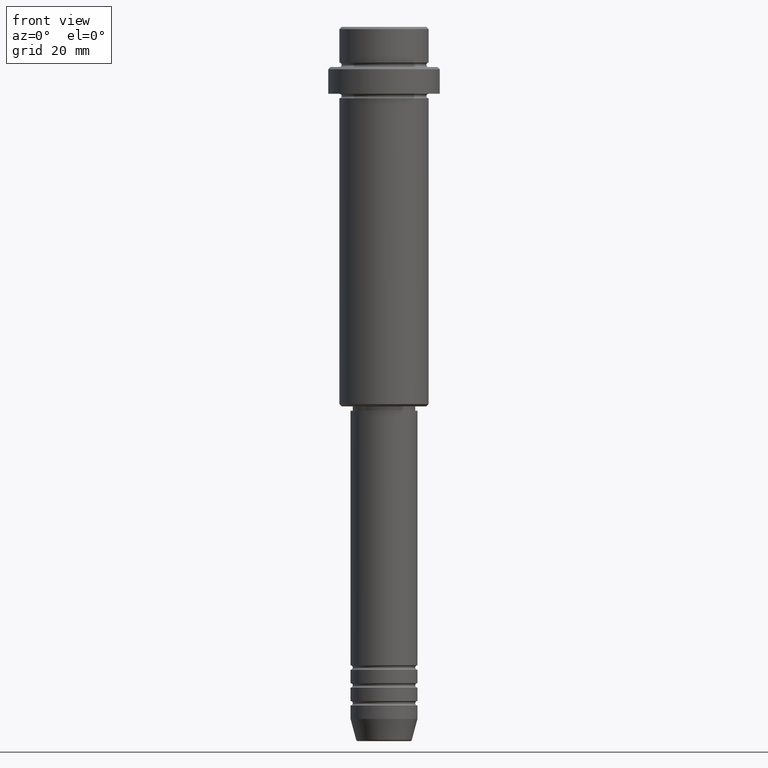
[diagram: clean part render]
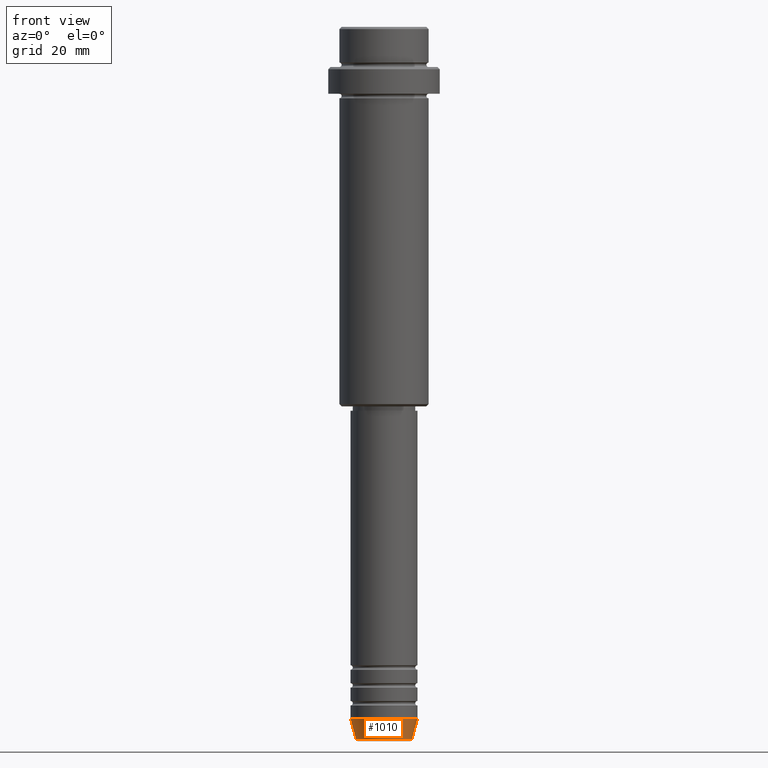
[diagram: same view with one face highlighted and labeled with its STEP entity id]
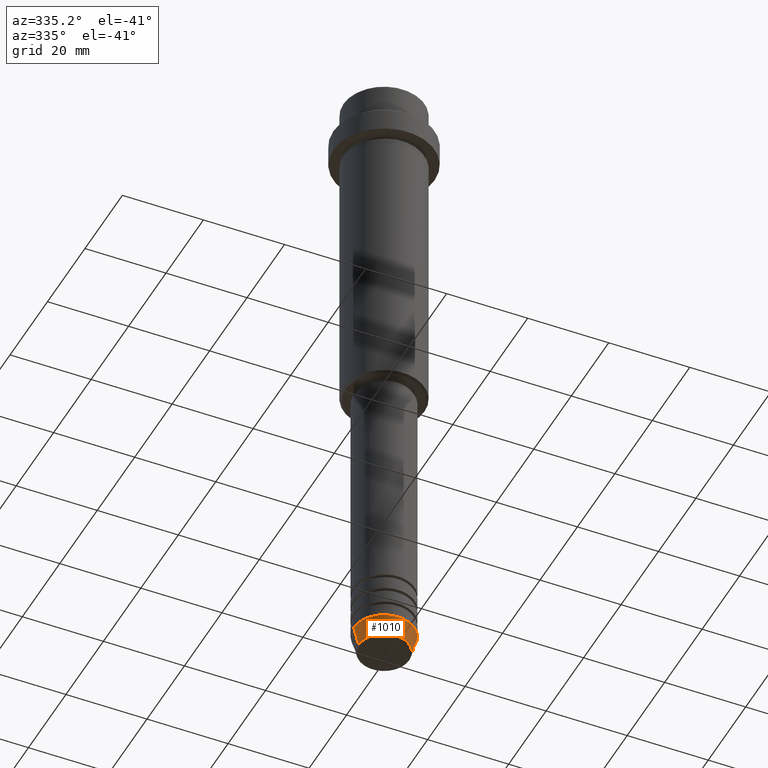
[diagram: same view with one face highlighted and labeled with its STEP entity id]
A machine part, front view. The second image highlights one B-rep face of the part: STEP entity #1010.
A second angle (auxiliary view) of the same face is appended — the face is thin or edge-on in the first view.
In plain terms, the highlighted conical surface has half-angle 15 deg.
Its self-contained STEP definition (entity closure, byte-faithful):
#34 = DIRECTION ( 'NONE',  ( -0.2588190451025213501, 3.169619151431772337E-17, 0.9659258262890680902 ) ) ;
#54 = VECTOR ( 'NONE', #558, 1000.000000000000000 ) ;
#61 = ORIENTED_EDGE ( 'NONE', *, *, #1208, .T. ) ;
#182 = CARTESIAN_POINT ( 'NONE',  ( 7.500000000000000000, 0.000000000000000000, -154.9999999999999716 ) ) ;
#186 = EDGE_CURVE ( 'NONE', #931, #1246, #452, .T. ) ;
#202 = ORIENTED_EDGE ( 'NONE', *, *, #511, .T. ) ;
#222 = AXIS2_PLACEMENT_3D ( 'NONE', #1171, #872, #1305 ) ;
#298 = CIRCLE ( 'NONE', #1174, 6.259553456999438659 ) ;
#327 = CONICAL_SURFACE ( 'NONE', #222, 7.500000000000000000, 0.2617993877991500740 ) ;
#374 = CARTESIAN_POINT ( 'NONE',  ( 0.000000000000000000, 0.000000000000000000, -154.9999999999999716 ) ) ;
#385 = EDGE_LOOP ( 'NONE', ( #829, #202, #61, #655 ) ) ;
#402 = DIRECTION ( 'NONE',  ( 1.000000000000000000, 0.000000000000000000, 0.000000000000000000 ) ) ;
#427 = FACE_OUTER_BOUND ( 'NONE', #385, .T. ) ;
#428 = DIRECTION ( 'NONE',  ( -0.000000000000000000, -0.000000000000000000, 1.000000000000000000 ) ) ;
#449 = CARTESIAN_POINT ( 'NONE',  ( 7.500000000000000000, 0.000000000000000000, -154.9999999999999716 ) ) ;
#452 = LINE ( 'NONE', #578, #859 ) ;
#511 = EDGE_CURVE ( 'NONE', #931, #922, #298, .T. ) ;
#537 = CIRCLE ( 'NONE', #1062, 7.500000000000000000 ) ;
#558 = DIRECTION ( 'NONE',  ( 0.2588190451025213501, 0.000000000000000000, 0.9659258262890680902 ) ) ;
#578 = CARTESIAN_POINT ( 'NONE',  ( -7.500000000000000000, 9.184850993605147944E-16, -154.9999999999999716 ) ) ;
#655 = ORIENTED_EDGE ( 'NONE', *, *, #964, .F. ) ;
#665 = LINE ( 'NONE', #449, #54 ) ;
#795 = CARTESIAN_POINT ( 'NONE',  ( -7.500000000000000000, 9.184850993605147944E-16, -154.9999999999999716 ) ) ;
#829 = ORIENTED_EDGE ( 'NONE', *, *, #186, .F. ) ;
#859 = VECTOR ( 'NONE', #34, 1000.000000000000000 ) ;
#872 = DIRECTION ( 'NONE',  ( -0.000000000000000000, -0.000000000000000000, 1.000000000000000000 ) ) ;
#922 = VERTEX_POINT ( 'NONE', #1263 ) ;
#931 = VERTEX_POINT ( 'NONE', #1046 ) ;
#958 = DIRECTION ( 'NONE',  ( 1.000000000000000000, 0.000000000000000000, 0.000000000000000000 ) ) ;
#964 = EDGE_CURVE ( 'NONE', #1246, #1036, #537, .T. ) ;
#968 = CARTESIAN_POINT ( 'NONE',  ( 0.000000000000000000, 0.000000000000000000, -159.6294095225512137 ) ) ;
#1010 = ADVANCED_FACE ( 'NONE', ( #427 ), #327, .T. ) ;
#1036 = VERTEX_POINT ( 'NONE', #182 ) ;
#1046 = CARTESIAN_POINT ( 'NONE',  ( -6.259553456999438659, 8.425296549405629486E-16, -159.6294095225512137 ) ) ;
#1062 = AXIS2_PLACEMENT_3D ( 'NONE', #374, #1401, #402 ) ;
#1171 = CARTESIAN_POINT ( 'NONE',  ( 0.000000000000000000, 0.000000000000000000, -154.9999999999999716 ) ) ;
#1174 = AXIS2_PLACEMENT_3D ( 'NONE', #968, #428, #958 ) ;
#1208 = EDGE_CURVE ( 'NONE', #922, #1036, #665, .T. ) ;
#1246 = VERTEX_POINT ( 'NONE', #795 ) ;
#1263 = CARTESIAN_POINT ( 'NONE',  ( 6.259553456999438659, 0.000000000000000000, -159.6294095225512137 ) ) ;
#1305 = DIRECTION ( 'NONE',  ( 1.000000000000000000, 0.000000000000000000, 0.000000000000000000 ) ) ;
#1401 = DIRECTION ( 'NONE',  ( -0.000000000000000000, -0.000000000000000000, 1.000000000000000000 ) ) ;